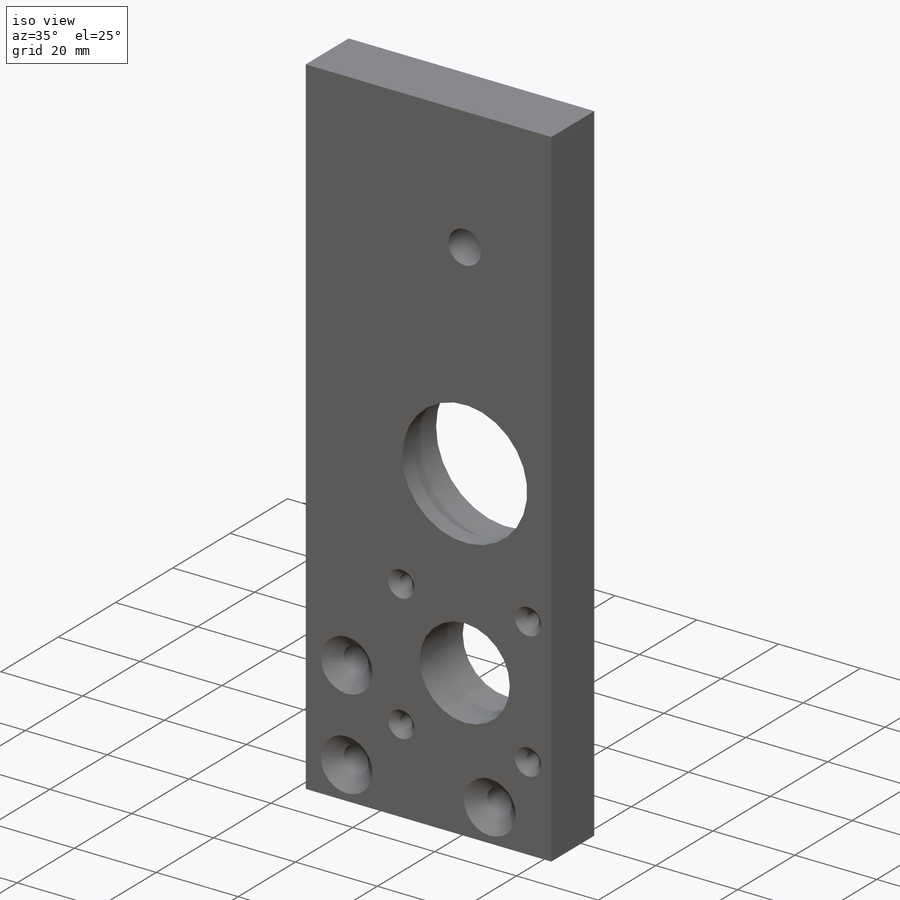
[diagram: iso view]
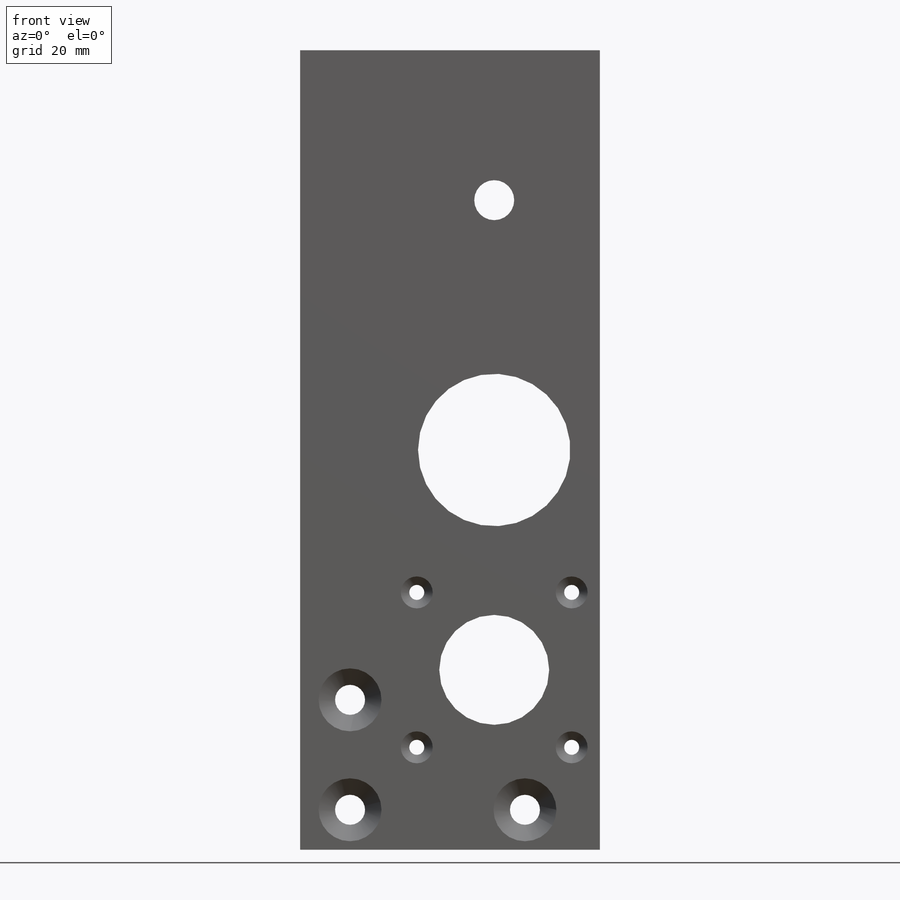
[diagram: front view]
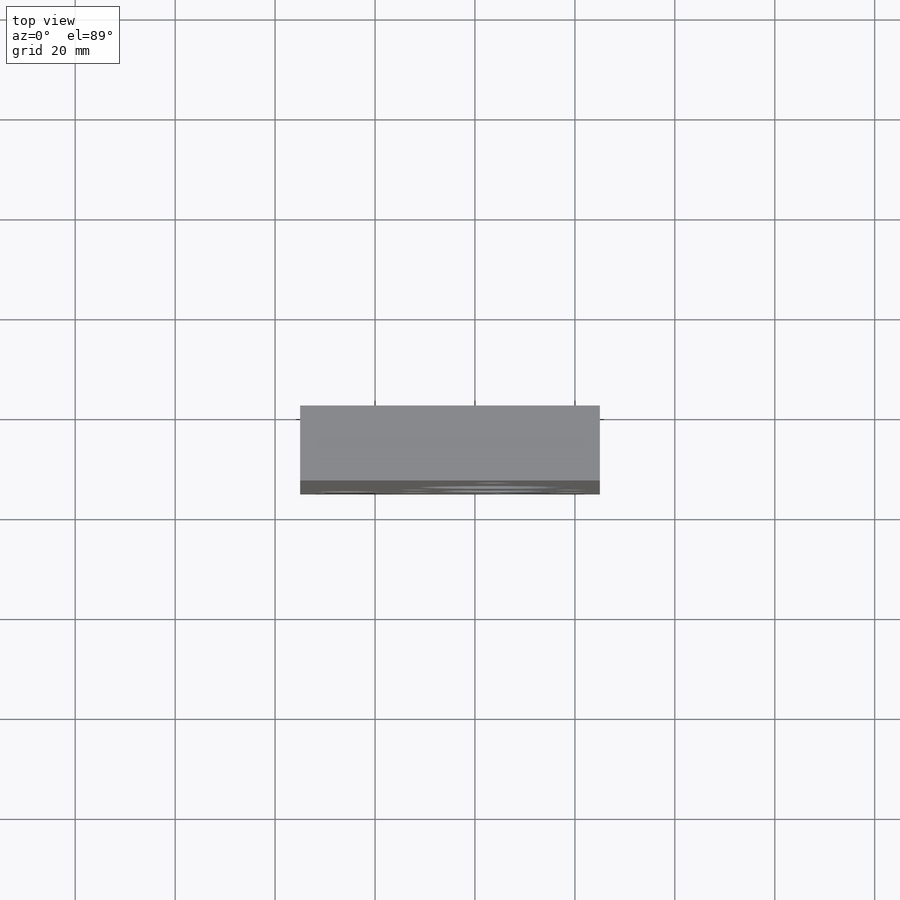
[diagram: top view]
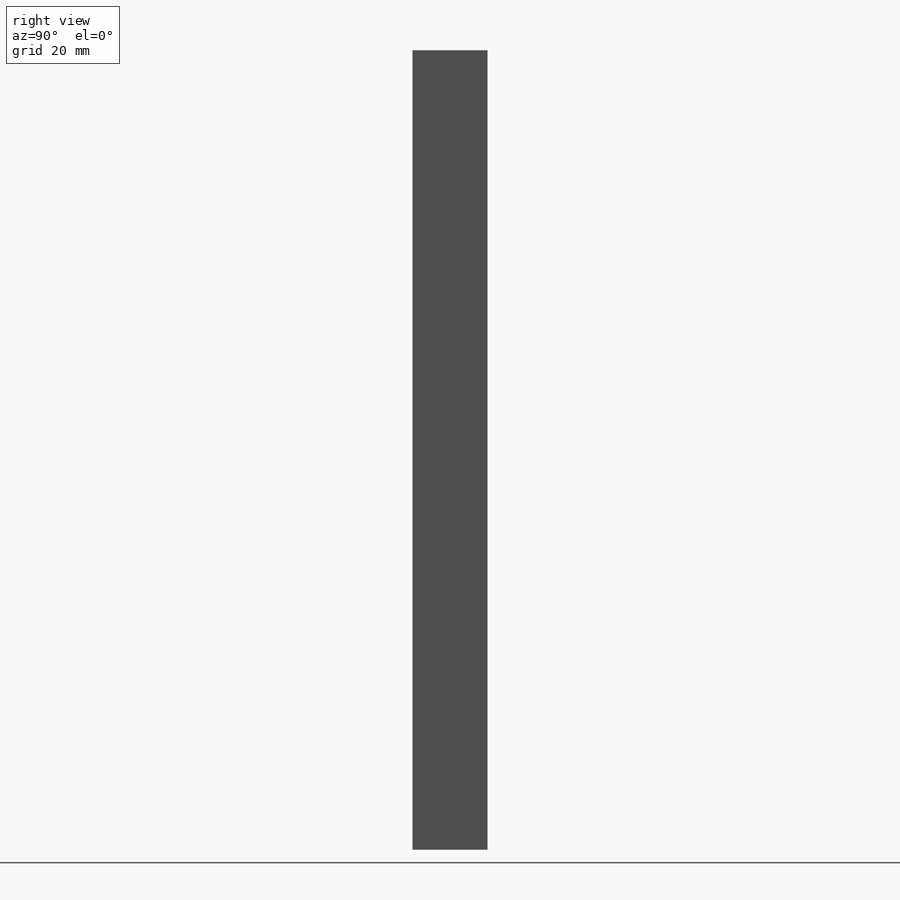
[diagram: right view]
SOLIDWORKS PART (.sldprt)
format: sldprt  version: not decoded by parser v0  size: 307,712 bytes
history: native  units: mm
features: sketch x9, cut_extrude x8, plane x3, chamfer x3, material x1, extrude x1 (+9 scaffold rows collapsed)
feature tree (34):
  scaffold x9  (default folders/planes/origin — collapsed)
  material  "Material <nicht festgelegt>"
  plane  "Ebene vorne"
  plane  "Ebene oben"
  plane  "Ebene rechts"
  sketch  "Skizze1"  dims[D1=160.0mm D2=65.0mm]
  extrude  "Aufsatz-Linear austragen1"  Depth=15mm
  sketch  "Skizze2"  dims[c1.D1=35.0mm c1.D2=52.0mm c1.D3=32.5mm c2.D2=80.0mm c2.D3=21.15mm]
  cut_extrude  "Schnitt-Linear austragen1"  Depth=11mm
  sketch  "Skizze4"  dims[D2=30.5mm D1=21.15mm D3=80.0mm]
  cut_extrude  "Schnitt-Linear austragen3"  Depth=10mm
  sketch  "Skizze5"  dims[D3=22.0mm D1=36.0mm D2=21.15mm]
  cut_extrude  "Schnitt-Linear austragen4"  Depth=20mm
  sketch  "Skizze7"  dims[D1=6.0mm D2=6.0mm D3=15.0mm D4=15.0mm D5=8.0mm D6=8.0mm]
  cut_extrude  "Schnitt-Linear austragen6"  Depth=17mm
  chamfer  "Fase1"  Distance=3.3mm Angle=45deg
  sketch  "Skizze10"  dims[D1=6.0mm D2=30.0mm D3=15.0mm]
  cut_extrude  "Schnitt-Linear austragen9"  Depth=29mm
  chamfer  "Fase2"  Distance=3.3mm Angle=45deg
  sketch  "Skizze11"  dims[D1=3.0mm D2=3.0mm D3=3.0mm D4=3.0mm D5=5.65mm D6=5.65mm D7=31.0mm D8=31.0mm D9=20.5mm D10=20.5mm D11=31.0mm D12=31.0mm]
  cut_extrude  "Schnitt-Linear austragen10"  Depth=44mm
  chamfer  "Fase3"  Distance=1.7mm Angle=45deg
  sketch  "Skizze13"  dims[D1=8.0mm D2=21.15mm D3=30.0mm]
  cut_extrude  "Schnitt-Linear austragen12"  Depth=35mm
  sketch  "Skizze14"
  cut_extrude  "Schnitt-Linear austragen13"  Depth=5mm
decode coverage: 20 of 21 modeling features carry decoded parameters
note: suppression state not decoded; provenance and decode notes live in map.json
